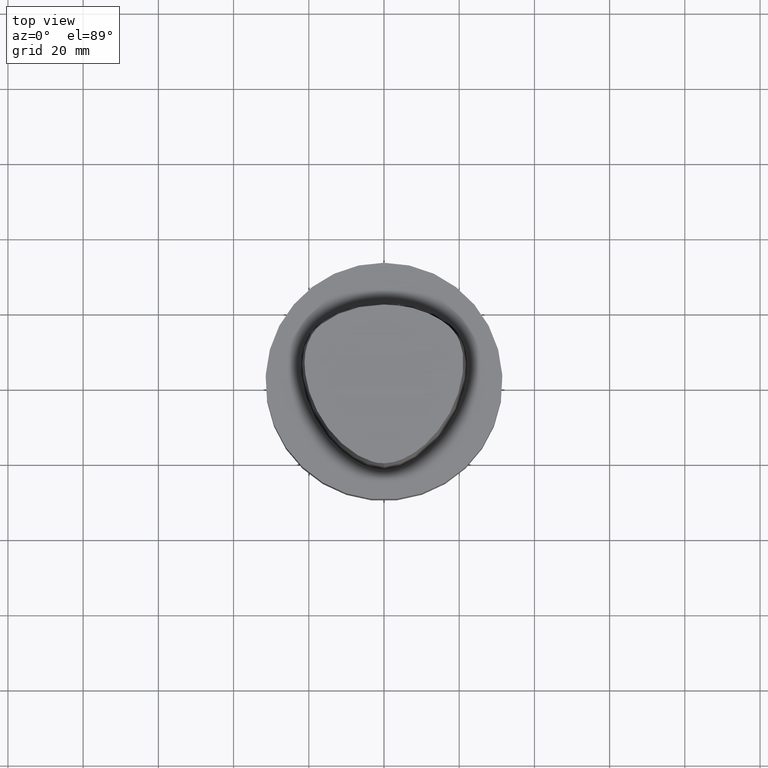
[diagram: clean part render]
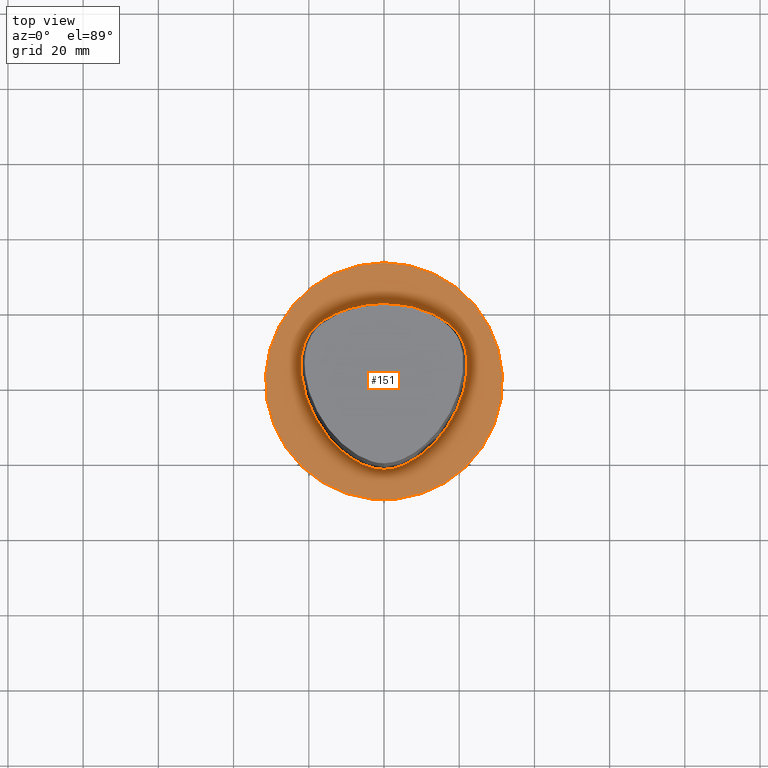
[diagram: same view with one face highlighted and labeled with its STEP entity id]
A machine part, top view. The second image highlights one B-rep face of the part: STEP entity #151.
In plain terms, the highlighted planar face has unit normal (-0, -0, 1).
Its self-contained STEP definition (entity closure, byte-faithful):
#73=EDGE_CURVE('Unnamed[1]',#192,#192,#193,.T.);
#85=EDGE_CURVE('Unnamed[1]',#211,#204,#212,.T.);
#111=EDGE_CURVE('Unnamed[1]',#196,#211,#251,.T.);
#151=ADVANCED_FACE('Unnamed[1]',(#307,#308),#309,.T.);
#160=EDGE_CURVE('Unnamed[1]',#204,#196,#320,.T.);
#192=VERTEX_POINT('',#350);
#193=CIRCLE('',#351,31.5);
#196=VERTEX_POINT('',#355);
#204=VERTEX_POINT('',#433);
#211=VERTEX_POINT('',#443);
#212=CIRCLE('',#444,0.949936168436318);
#251=B_SPLINE_CURVE_WITH_KNOTS('',3,(#508,#509,#510,#511,#512,#513,#514,#515,#516,#517,#518,#519,#520,#521,#522,#523,#524,#525),.UNSPECIFIED.,.F.,.F.,(4,1,1,1,1,1,1,1,1,2,1,1,1,1,4),(-6.6151339308743,-6.20168806019465,-5.78824218951501,-5.37479631883537,-4.96135044815572,-4.13445870679644,-3.30756696543715,-2.89412109475751,-2.48067522407786,-2.06722935339822,-1.65378348271857,-1.24033761203893,-0.826891741359287,-0.413445870679644,0.0),.UNSPECIFIED.);
#307=FACE_BOUND('',#666,.T.);
#308=FACE_OUTER_BOUND('',#667,.T.);
#309=PLANE('',#668);
#320=B_SPLINE_CURVE_WITH_KNOTS('',3,(#699,#700,#701,#702,#703,#704,#705,#706,#707,#708,#709,#710,#711,#712,#713,#714,#715),.UNSPECIFIED.,.F.,.F.,(4,1,1,1,1,1,1,1,1,1,1,1,1,1,4),(-13.2302678617486,-12.816821991069,-12.4033761203893,-11.9899302497097,-11.57648437903,-11.1630385083504,-10.9563155730106,-10.7495926376707,-10.3361467669911,-9.92270089631145,-9.09580915495216,-8.26891741359287,-7.44202567223358,-7.02857980155394,-6.6151339308743),.UNSPECIFIED.);
#350=CARTESIAN_POINT('',(-3.88267476788467E-031,31.5,3.85763741731416E-015));
#351=AXIS2_PLACEMENT_3D('',#737,#738,#739);
#355=CARTESIAN_POINT('',(0.04359356758149,-23.4691235068931,7.78075697532443E-032));
#433=CARTESIAN_POINT('',(0.044682985379347,20.6765087343109,1.61778115328528E-031));
#443=CARTESIAN_POINT('',(-0.045171994691285,20.6766009553285,1.6755590516169E-031));
#444=AXIS2_PLACEMENT_3D('',#754,#755,#756);
#508=CARTESIAN_POINT('',(0.04359356758149,-23.4691235068931,7.78075697532443E-032));
#509=CARTESIAN_POINT('',(-1.4714994713963,-23.4767895315797,2.46519032881566E-032));
#510=CARTESIAN_POINT('',(-4.43923476371401,-22.821149804767,-4.93038065763132E-032));
#511=CARTESIAN_POINT('',(-8.35043230079961,-20.8000751253325,-9.86076131526265E-032));
#512=CARTESIAN_POINT('',(-11.744900222602,-18.1556117874078,-1.97215226305253E-031));
#513=CARTESIAN_POINT('',(-15.6989602501314,-14.0406306929147,-1.97215226305253E-031));
#514=CARTESIAN_POINT('',(-19.5352875070682,-8.00624990770787,1.97215226305253E-031));
#515=CARTESIAN_POINT('',(-21.7205626190491,-1.16081708945282,0.0));
#516=CARTESIAN_POINT('',(-22.2486616783342,4.54965558738736,0.0));
#517=CARTESIAN_POINT('',(-21.6646421256468,9.00229539124618,0.0));
#518=CARTESIAN_POINT('',(-20.3945635471922,11.7780544971003,0.0));
#519=CARTESIAN_POINT('',(-18.5925528034471,14.1980602922581,0.0));
#520=CARTESIAN_POINT('',(-16.3226584122258,16.1777748720707,0.0));
#521=CARTESIAN_POINT('',(-12.5076407874579,18.2524201541303,9.86076131526265E-032));
#522=CARTESIAN_POINT('',(-8.46776192107786,19.679114377952,9.86076131526265E-032));
#523=CARTESIAN_POINT('',(-4.23043497193604,20.487781597334,1.97215226305253E-031));
#524=CARTESIAN_POINT('',(-1.42313094248379,20.6127745766442,1.10933564796705E-031));
#525=CARTESIAN_POINT('',(-0.045171994691285,20.6766009553285,1.6755590516169E-031));
#666=EDGE_LOOP('',(#854,#855,#856));
#667=EDGE_LOOP('',(#857));
#668=AXIS2_PLACEMENT_3D('',#858,#859,#860);
#699=CARTESIAN_POINT('',(0.044682985379347,20.6765087343109,1.61778115328528E-031));
#700=CARTESIAN_POINT('',(1.42379272427753,20.6097915814392,8.62816615085482E-032));
#701=CARTESIAN_POINT('',(4.2230955003445,20.4837538303966,1.4791141972894E-031));
#702=CARTESIAN_POINT('',(8.47220762821777,19.6890432607088,9.86076131526265E-032));
#703=CARTESIAN_POINT('',(12.5141247708253,18.2434968480404,0.0));
#704=CARTESIAN_POINT('',(16.3038624872874,16.1734192182143,1.97215226305253E-031));
#705=CARTESIAN_POINT('',(19.1446913988473,13.7036723639434,-1.97215226305253E-031));
#706=CARTESIAN_POINT('',(20.7319894342149,11.1014620996188,0.0));
#707=CARTESIAN_POINT('',(21.7831756505763,8.28099229708081,-1.97215226305253E-031));
#708=CARTESIAN_POINT('',(22.2258240701438,4.60865440596506,0.0));
#709=CARTESIAN_POINT('',(21.7436130080666,-1.11326526354485,0.0));
#710=CARTESIAN_POINT('',(19.5519487660502,-7.95432366164584,0.0));
#711=CARTESIAN_POINT('',(14.9574167123838,-15.2089785567293,0.0));
#712=CARTESIAN_POINT('',(9.66840283021945,-20.0827414369705,-9.86076131526265E-032));
#713=CARTESIAN_POINT('',(4.51628650521788,-22.7946374572188,-9.86076131526265E-032));
#714=CARTESIAN_POINT('',(1.55867251738073,-23.4612972770043,-1.23259516440783E-032));
#715=CARTESIAN_POINT('',(0.04359356758149,-23.4691235068931,7.78075697532443E-032));
#737=CARTESIAN_POINT('',(0.0,0.0,0.0));
#738=DIRECTION('',(6.12323399573677E-017,1.22464679914735E-016,-1.0));
#739=DIRECTION('',(-1.23259516440783E-032,1.0,1.22464679914735E-016));
#754=CARTESIAN_POINT('',(-0.001218547003662,19.7276821925089,1.97178046083078E-015));
#755=DIRECTION('',(6.12323399573677E-017,1.22464679914735E-016,-1.0));
#756=DIRECTION('',(-0.046269895968506,0.998928974816059,1.19500303158668E-016));
#854=ORIENTED_EDGE('',*,*,#160,.T.);
#855=ORIENTED_EDGE('',*,*,#111,.T.);
#856=ORIENTED_EDGE('',*,*,#85,.T.);
#857=ORIENTED_EDGE('',*,*,#73,.F.);
#858=CARTESIAN_POINT('',(-1.94133738394233E-031,15.75,1.92881870865708E-015));
#859=DIRECTION('',(-6.12323399573677E-017,-1.22464679914735E-016,1.0));
#860=DIRECTION('',(1.23259516440783E-032,-1.0,-1.22464679914735E-016));